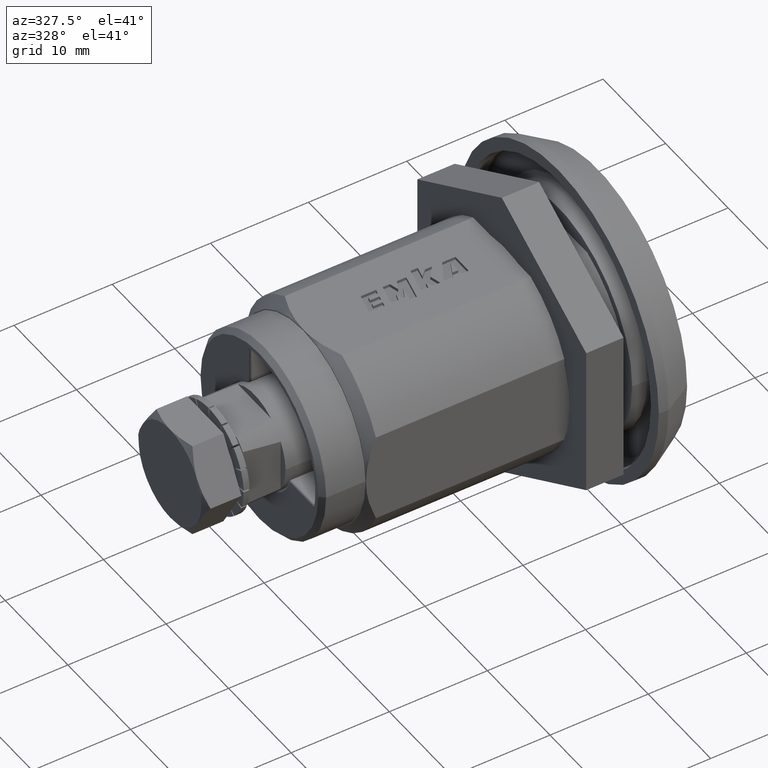
[diagram: clean part render]
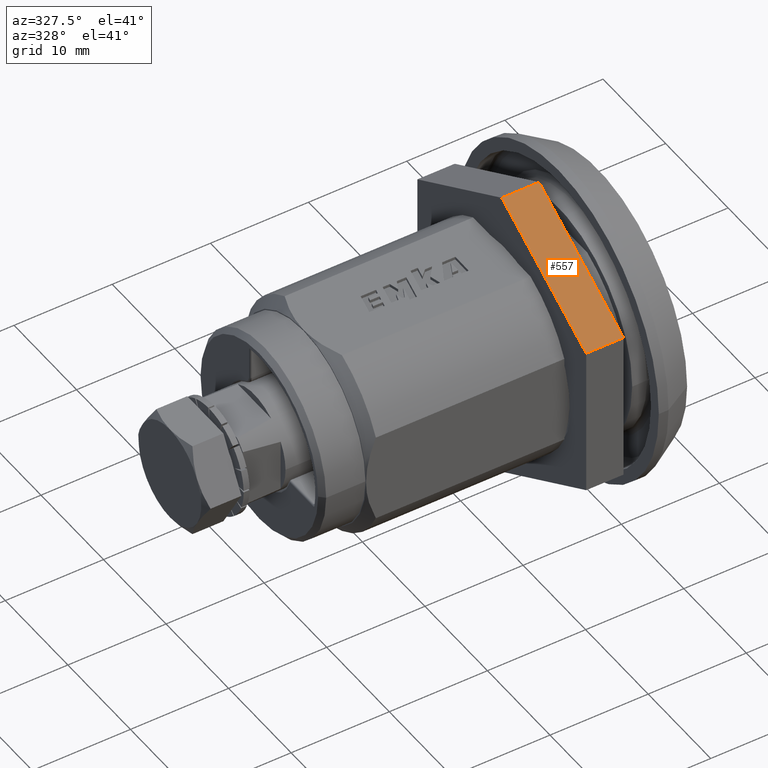
[diagram: same view with one face highlighted and labeled with its STEP entity id]
A machine part, auxiliary view. The second image highlights one B-rep face of the part: STEP entity #557.
In plain terms, the highlighted planar face has unit normal (0, 0.5, -0.866).
Its self-contained STEP definition (entity closure, byte-faithful):
#557=ADVANCED_FACE('',(#3643),#3642,.F.);
#3642=PLANE('',#7944);
#3643=FACE_OUTER_BOUND('',#7945,.T.);
#7941=CARTESIAN_POINT('',(-7.01480577066E+00,4.18000000000E+00,-1.48500000000E+01));
#7942=DIRECTION('',(8.66025403784E-01,0.00000000000E+00,5.00000000000E-01));
#7943=DIRECTION('',(-5.00000000000E-01,0.00000000000E+00,8.66025403784E-01));
#7944=AXIS2_PLACEMENT_3D('',#7941,#7942,#7943);
#7945=EDGE_LOOP('',(#9987,#9988,#9989,#9990));
#9987=ORIENTED_EDGE('',*,*,#11202,.T.);
#9988=ORIENTED_EDGE('',*,*,#11196,.F.);
#9989=ORIENTED_EDGE('',*,*,#11168,.F.);
#9990=ORIENTED_EDGE('',*,*,#11163,.T.);
#11163=EDGE_CURVE('',#16405,#16398,#16406,.T.);
#11168=EDGE_CURVE('',#16405,#16439,#16440,.T.);
#11196=EDGE_CURVE('',#16439,#16629,#16630,.T.);
#11202=EDGE_CURVE('',#16398,#16629,#16668,.T.);
#16398=VERTEX_POINT('',#21672);
#16405=VERTEX_POINT('',#21676);
#16406=LINE('',#21677,#21678);
#16439=VERTEX_POINT('',#21697);
#16440=LINE('',#21698,#21699);
#16629=VERTEX_POINT('',#22110);
#16630=LINE('',#22111,#22112);
#16668=LINE('',#22132,#22133);
#21672=CARTESIAN_POINT('',(-1.55884572681E+01,0.00000000000E+00,0.00000000000E+00));
#21676=CARTESIAN_POINT('',(-7.79422863406E+00,0.00000000000E+00,-1.35000000000E+01));
#21677=CARTESIAN_POINT('',(-7.79422863406E+00,0.00000000000E+00,-1.35000000000E+01));
#21678=VECTOR('',#21679,1.55884572681E+01);
#21679=DIRECTION('',(-5.00000000000E-01,0.00000000000E+00,8.66025403784E-01));
#21697=CARTESIAN_POINT('',(-7.79422863406E+00,3.80000000000E+00,-1.35000000000E+01));
#21698=CARTESIAN_POINT('',(-7.79422863406E+00,0.00000000000E+00,-1.35000000000E+01));
#21699=VECTOR('',#21700,3.80000000000E+00);
#21700=DIRECTION('',(0.00000000000E+00,1.00000000000E+00,0.00000000000E+00));
#22110=CARTESIAN_POINT('',(-1.55884572681E+01,3.80000000000E+00,0.00000000000E+00));
#22111=CARTESIAN_POINT('',(-7.79422863406E+00,3.80000000000E+00,-1.35000000000E+01));
#22112=VECTOR('',#22113,1.55884572681E+01);
#22113=DIRECTION('',(-5.00000000000E-01,0.00000000000E+00,8.66025403784E-01));
#22132=CARTESIAN_POINT('',(-1.55884572681E+01,0.00000000000E+00,0.00000000000E+00));
#22133=VECTOR('',#22134,3.80000000000E+00);
#22134=DIRECTION('',(0.00000000000E+00,1.00000000000E+00,0.00000000000E+00));